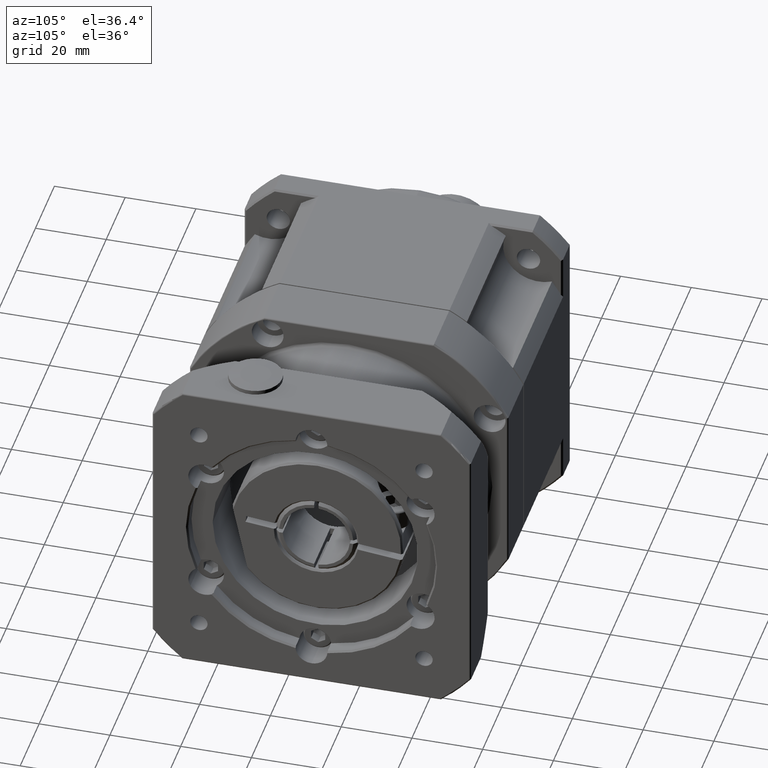
[diagram: clean part render]
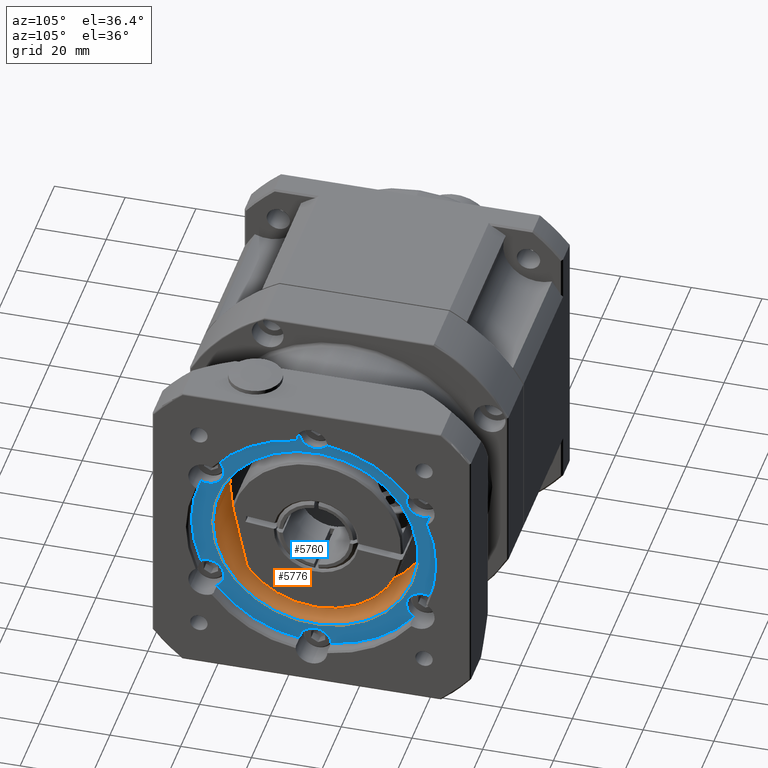
[diagram: same view with the hole feature highlighted: cylindrical wall and planar end face, labeled with their STEP entity ids]
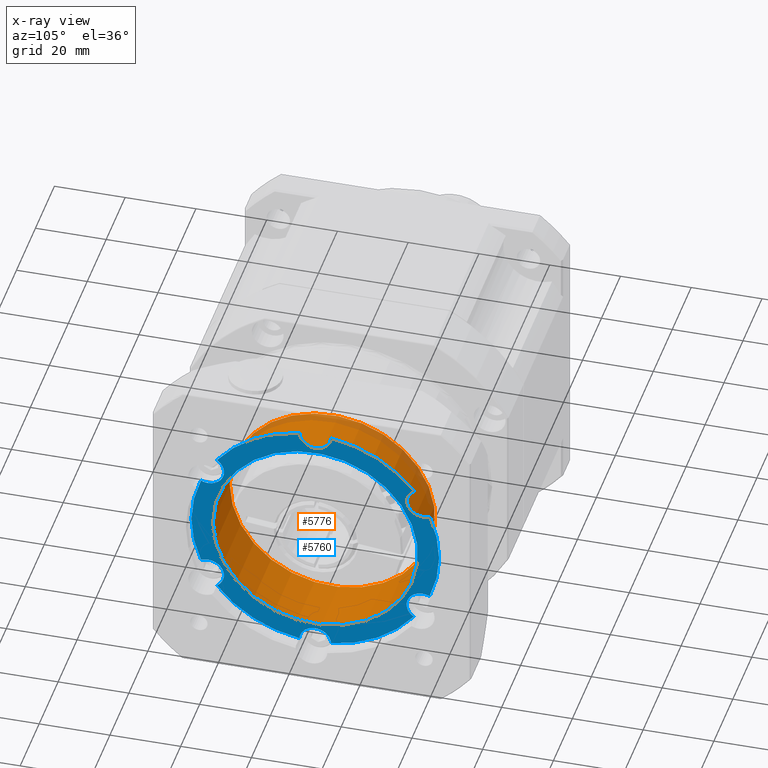
[diagram: x-ray of the same camera — body ghosted, the hole faces saturated]
A machine part, auxiliary view. The highlighted faces form one hole feature of diameter 58 mm: the cylindrical wall (entity #5776, orange) and its adjacent planar end face (entity #5760, blue) — they share a circular edge in the B-rep.
The next image is the same camera in x-ray (body ghosted, the hole faces saturated) — the bore reads through the body.
Wall:
#50=B_SPLINE_CURVE_WITH_KNOTS('',3,(#9449,#9450,#9451,#9452,#9453,#9454,
#9455,#9456,#9457,#9458,#9459,#9460,#9461,#9462,#9463,#9464,#9465,#9466,
#9467,#9468,#9469,#9470,#9471,#9472,#9473,#9474,#9475,#9476,#9477,#9478,
#9479,#9480,#9481,#9482,#9483,#9484,#9485,#9486),.UNSPECIFIED.,.T.,.F.,
(4,2,2,2,2,2,2,2,2,2,2,2,2,2,2,2,2,2,4),(0.,0.0816463751742779,0.163292750348556,
0.326585500697112,0.560253973766129,0.793922446835146,0.99716105333715,
1.20039965983915,1.35762905963704,1.51485845943492,1.68151005279486,1.84816164615479,
2.0419909140311,2.2358201819074,2.46948865497642,2.70315712804543,2.86644987839399,
2.94809625356827,3.02974262874255),.UNSPECIFIED.);
#1049=FACE_BOUND('',#1766,.T.);
#1050=FACE_BOUND('',#1767,.T.);
#1292=FACE_OUTER_BOUND('',#1765,.T.);
#1765=EDGE_LOOP('',(#4253));
#1766=EDGE_LOOP('',(#4254));
#1767=EDGE_LOOP('',(#4255));
#2215=CIRCLE('',#6252,29.);
#2242=CIRCLE('',#6298,29.);
#2613=VERTEX_POINT('',#9283);
#2646=VERTEX_POINT('',#9422);
#2652=VERTEX_POINT('',#9448);
#3195=EDGE_CURVE('',#2613,#2613,#2215,.T.);
#3246=EDGE_CURVE('',#2646,#2646,#2242,.T.);
#3252=EDGE_CURVE('',#2652,#2652,#50,.T.);
#4253=ORIENTED_EDGE('',*,*,#3195,.F.);
#4254=ORIENTED_EDGE('',*,*,#3252,.T.);
#4255=ORIENTED_EDGE('',*,*,#3246,.F.);
#5297=CYLINDRICAL_SURFACE('',#6319,29.);
#5776=ADVANCED_FACE('',(#1292,#1049,#1050),#5297,.F.);
#6252=AXIS2_PLACEMENT_3D('',#9284,#7272,#7273);
#6298=AXIS2_PLACEMENT_3D('',#9423,#7376,#7377);
#6319=AXIS2_PLACEMENT_3D('',#9488,#7418,#7419);
#7272=DIRECTION('center_axis',(1.,1.45660120077612E-15,-5.27608953374165E-15));
#7273=DIRECTION('ref_axis',(1.16447578057657E-15,-1.,-5.94793311827527E-16));
#7376=DIRECTION('center_axis',(-1.,-1.25474246902609E-15,5.27608953374165E-15));
#7377=DIRECTION('ref_axis',(-5.27608953374165E-15,5.94793311827521E-16,
-1.));
#7418=DIRECTION('center_axis',(-1.,-1.25474246902609E-15,5.27608953374165E-15));
#7419=DIRECTION('ref_axis',(1.16447578057657E-15,-1.,-5.94793311827527E-16));
#9283=CARTESIAN_POINT('',(22.9702896556818,-61.3933275789247,10.8503877548309));
#9284=CARTESIAN_POINT('Origin',(22.9702896556817,-32.3933275789247,10.8503877548309));
#9422=CARTESIAN_POINT('',(40.9702896556818,-61.3933275789247,10.8503877548308));
#9423=CARTESIAN_POINT('Origin',(40.9702896556817,-32.3933275789247,10.8503877548308));
#9448=CARTESIAN_POINT('',(32.9702896556818,-55.6433275789247,28.1835207664938));
#9449=CARTESIAN_POINT('Ctrl Pts',(32.9702896556818,-55.6433275789247,28.1835207664938));
#9450=CARTESIAN_POINT('Ctrl Pts',(33.2424442395961,-55.6433275789247,28.1835207664938));
#9451=CARTESIAN_POINT('Ctrl Pts',(33.5142625144002,-55.6168623320245,28.2191694088853));
#9452=CARTESIAN_POINT('Ctrl Pts',(34.0398867880673,-55.5152342092275,28.354232370927));
#9453=CARTESIAN_POINT('Ctrl Pts',(34.2937460030806,-55.4401248183887,28.4534797721084));
#9454=CARTESIAN_POINT('Ctrl Pts',(35.008394217384,-55.1577731280243,28.819106856046));
#9455=CARTESIAN_POINT('Ctrl Pts',(35.4225193526197,-54.8909645035666,29.1546755813682));
#9456=CARTESIAN_POINT('Ctrl Pts',(36.2126901004974,-54.208806961039,29.9677932287982));
#9457=CARTESIAN_POINT('Ctrl Pts',(36.5882529885422,-53.705527012732,30.5335049203157));
#9458=CARTESIAN_POINT('Ctrl Pts',(37.0931368519193,-52.5925170943237,31.674116770056));
#9459=CARTESIAN_POINT('Ctrl Pts',(37.2202896556819,-51.9817666303164,32.2489795966109));
#9460=CARTESIAN_POINT('Ctrl Pts',(37.2202896556819,-50.8815189842715,33.2031444830304));
#9461=CARTESIAN_POINT('Ctrl Pts',(37.1225791647524,-50.3101992212166,33.6638485097967));
#9462=CARTESIAN_POINT('Ctrl Pts',(36.6670582112992,-49.2142040307922,34.4835507452647));
#9463=CARTESIAN_POINT('Ctrl Pts',(36.3080520852598,-48.6904989941188,34.8431811359923));
#9464=CARTESIAN_POINT('Ctrl Pts',(35.5010562230053,-47.9455449768017,35.3305697637339));
#9465=CARTESIAN_POINT('Ctrl Pts',(35.0508412307573,-47.6482308367331,35.5149997546291));
#9466=CARTESIAN_POINT('Ctrl Pts',(34.0475417067486,-47.2467656704439,35.7588307465541));
#9467=CARTESIAN_POINT('Ctrl Pts',(33.4943876550081,-47.1433275789247,35.8191181991286));
#9468=CARTESIAN_POINT('Ctrl Pts',(32.4147843444821,-47.1433275789247,35.8191181991286));
#9469=CARTESIAN_POINT('Ctrl Pts',(31.8316485297585,-47.259384330976,35.7515563188611));
#9470=CARTESIAN_POINT('Ctrl Pts',(30.7847254225578,-47.7042497524487,35.4805218480643));
#9471=CARTESIAN_POINT('Ctrl Pts',(30.3209160537272,-48.0322935407937,35.2758808849638));
#9472=CARTESIAN_POINT('Ctrl Pts',(29.5512265423088,-48.8019830522121,34.7669549855349));
#9473=CARTESIAN_POINT('Ctrl Pts',(29.2239565602094,-49.3083314753863,34.4155344040968));
#9474=CARTESIAN_POINT('Ctrl Pts',(28.8091321665646,-50.3603768171964,33.6235877431571));
#9475=CARTESIAN_POINT('Ctrl Pts',(28.7202896556819,-50.9052141889451,33.1825953526984));
#9476=CARTESIAN_POINT('Ctrl Pts',(28.7202896556819,-51.9817666303164,32.2489795966109));
#9477=CARTESIAN_POINT('Ctrl Pts',(28.8474424594444,-52.5925170943237,31.6741167700561));
#9478=CARTESIAN_POINT('Ctrl Pts',(29.3523263228215,-53.705527012732,30.5335049203157));
#9479=CARTESIAN_POINT('Ctrl Pts',(29.7278892108663,-54.208806961039,29.9677932287982));
#9480=CARTESIAN_POINT('Ctrl Pts',(30.5180599587439,-54.8909645035666,29.1546755813682));
#9481=CARTESIAN_POINT('Ctrl Pts',(30.9321850939797,-55.1577731280243,28.8191068560461));
#9482=CARTESIAN_POINT('Ctrl Pts',(31.6468333082831,-55.4401248183887,28.4534797721084));
#9483=CARTESIAN_POINT('Ctrl Pts',(31.9006925232963,-55.5152342092275,28.354232370927));
#9484=CARTESIAN_POINT('Ctrl Pts',(32.4263167969635,-55.6168623320245,28.2191694088853));
#9485=CARTESIAN_POINT('Ctrl Pts',(32.6981350717676,-55.6433275789247,28.1835207664938));
#9486=CARTESIAN_POINT('Ctrl Pts',(32.9702896556818,-55.6433275789247,28.1835207664938));
#9488=CARTESIAN_POINT('Origin',(31.9702896556817,-32.3933275789247,10.8503877548309));
End face:
#847=PLANE('',#6292);
#1038=FACE_BOUND('',#1739,.T.);
#1276=FACE_OUTER_BOUND('',#1738,.T.);
#1738=EDGE_LOOP('',(#4200,#4201,#4202,#4203,#4204,#4205,#4206,#4207,#4208,
#4209,#4210,#4211));
#1739=EDGE_LOOP('',(#4212));
#2218=CIRCLE('',#6257,4.5);
#2221=CIRCLE('',#6262,4.5);
#2224=CIRCLE('',#6267,4.5);
#2227=CIRCLE('',#6272,4.5);
#2229=CIRCLE('',#6276,4.5);
#2232=CIRCLE('',#6281,35.);
#2236=CIRCLE('',#6291,4.5);
#2237=CIRCLE('',#6293,35.);
#2238=CIRCLE('',#6294,35.);
#2239=CIRCLE('',#6295,35.);
#2240=CIRCLE('',#6296,35.);
#2241=CIRCLE('',#6297,35.);
#2242=CIRCLE('',#6298,29.);
#2618=VERTEX_POINT('',#9305);
#2619=VERTEX_POINT('',#9307);
#2623=VERTEX_POINT('',#9325);
#2624=VERTEX_POINT('',#9327);
#2628=VERTEX_POINT('',#9345);
#2629=VERTEX_POINT('',#9347);
#2633=VERTEX_POINT('',#9365);
#2634=VERTEX_POINT('',#9367);
#2637=VERTEX_POINT('',#9383);
#2638=VERTEX_POINT('',#9385);
#2641=VERTEX_POINT('',#9398);
#2645=VERTEX_POINT('',#9413);
#2646=VERTEX_POINT('',#9422);
#3202=EDGE_CURVE('',#2619,#2618,#2218,.T.);
#3209=EDGE_CURVE('',#2624,#2623,#2221,.T.);
#3216=EDGE_CURVE('',#2629,#2628,#2224,.T.);
#3223=EDGE_CURVE('',#2634,#2633,#2227,.T.);
#3229=EDGE_CURVE('',#2638,#2637,#2229,.T.);
#3235=EDGE_CURVE('',#2641,#2637,#2232,.T.);
#3240=EDGE_CURVE('',#2641,#2645,#2236,.T.);
#3241=EDGE_CURVE('',#2638,#2633,#2237,.T.);
#3242=EDGE_CURVE('',#2619,#2645,#2238,.T.);
#3243=EDGE_CURVE('',#2624,#2618,#2239,.T.);
#3244=EDGE_CURVE('',#2629,#2623,#2240,.T.);
#3245=EDGE_CURVE('',#2634,#2628,#2241,.T.);
#3246=EDGE_CURVE('',#2646,#2646,#2242,.T.);
#4200=ORIENTED_EDGE('',*,*,#3223,.T.);
#4201=ORIENTED_EDGE('',*,*,#3241,.F.);
#4202=ORIENTED_EDGE('',*,*,#3229,.T.);
#4203=ORIENTED_EDGE('',*,*,#3235,.F.);
#4204=ORIENTED_EDGE('',*,*,#3240,.T.);
#4205=ORIENTED_EDGE('',*,*,#3242,.F.);
#4206=ORIENTED_EDGE('',*,*,#3202,.T.);
#4207=ORIENTED_EDGE('',*,*,#3243,.F.);
#4208=ORIENTED_EDGE('',*,*,#3209,.T.);
#4209=ORIENTED_EDGE('',*,*,#3244,.F.);
#4210=ORIENTED_EDGE('',*,*,#3216,.T.);
#4211=ORIENTED_EDGE('',*,*,#3245,.F.);
#4212=ORIENTED_EDGE('',*,*,#3246,.T.);
#5760=ADVANCED_FACE('',(#1276,#1038),#847,.F.);
#6257=AXIS2_PLACEMENT_3D('',#9308,#7283,#7284);
#6262=AXIS2_PLACEMENT_3D('',#9328,#7295,#7296);
#6267=AXIS2_PLACEMENT_3D('',#9348,#7307,#7308);
#6272=AXIS2_PLACEMENT_3D('',#9368,#7319,#7320);
#6276=AXIS2_PLACEMENT_3D('',#9386,#7329,#7330);
#6281=AXIS2_PLACEMENT_3D('',#9400,#7341,#7342);
#6291=AXIS2_PLACEMENT_3D('',#9415,#7362,#7363);
#6292=AXIS2_PLACEMENT_3D('',#9416,#7364,#7365);
#6293=AXIS2_PLACEMENT_3D('',#9417,#7366,#7367);
#6294=AXIS2_PLACEMENT_3D('',#9418,#7368,#7369);
#6295=AXIS2_PLACEMENT_3D('',#9419,#7370,#7371);
#6296=AXIS2_PLACEMENT_3D('',#9420,#7372,#7373);
#6297=AXIS2_PLACEMENT_3D('',#9421,#7374,#7375);
#6298=AXIS2_PLACEMENT_3D('',#9423,#7376,#7377);
#7283=DIRECTION('center_axis',(-1.,-1.25474246902609E-15,5.27608953374165E-15));
#7284=DIRECTION('ref_axis',(-1.37659112381579E-15,-0.866025403784438,-0.5));
#7295=DIRECTION('center_axis',(-1.,-1.25474246902609E-15,5.27608953374165E-15));
#7296=DIRECTION('ref_axis',(-5.27608953374165E-15,4.09756141056661E-16,
-1.));
#7307=DIRECTION('center_axis',(-1.,-1.25474246902609E-15,5.27608953374165E-15));
#7308=DIRECTION('ref_axis',(-3.89949840992586E-15,0.866025403784439,-0.5));
#7319=DIRECTION('center_axis',(-1.,-1.25474246902609E-15,5.27608953374165E-15));
#7320=DIRECTION('ref_axis',(1.37659112381578E-15,0.866025403784439,0.5));
#7329=DIRECTION('center_axis',(-1.,-1.25474246902609E-15,5.27608953374165E-15));
#7330=DIRECTION('ref_axis',(5.27608953374165E-15,-5.94793311827521E-16,
1.));
#7341=DIRECTION('center_axis',(-1.,-1.25474246902609E-15,5.27608953374165E-15));
#7342=DIRECTION('ref_axis',(-5.27608953374165E-15,5.94793311827521E-16,
-1.));
#7362=DIRECTION('center_axis',(-1.,-1.25474246902609E-15,5.27608953374165E-15));
#7363=DIRECTION('ref_axis',(3.89949840992586E-15,-0.866025403784439,0.5));
#7364=DIRECTION('center_axis',(-1.,-1.25474246902609E-15,5.27608953374165E-15));
#7365=DIRECTION('ref_axis',(-4.9737991503207E-15,7.105427357601E-16,-1.));
#7366=DIRECTION('center_axis',(-1.,-1.25474246902609E-15,5.27608953374165E-15));
#7367=DIRECTION('ref_axis',(-5.27608953374165E-15,5.94793311827521E-16,
-1.));
#7368=DIRECTION('center_axis',(-1.,-1.25474246902609E-15,5.27608953374165E-15));
#7369=DIRECTION('ref_axis',(-5.27608953374165E-15,5.94793311827521E-16,
-1.));
#7370=DIRECTION('center_axis',(-1.,-1.25474246902609E-15,5.27608953374165E-15));
#7371=DIRECTION('ref_axis',(-5.27608953374165E-15,5.94793311827521E-16,
-1.));
#7372=DIRECTION('center_axis',(-1.,-1.25474246902609E-15,5.27608953374165E-15));
#7373=DIRECTION('ref_axis',(-5.27608953374165E-15,5.94793311827521E-16,
-1.));
#7374=DIRECTION('center_axis',(-1.,-1.25474246902609E-15,5.27608953374165E-15));
#7375=DIRECTION('ref_axis',(-5.27608953374165E-15,5.94793311827521E-16,
-1.));
#7376=DIRECTION('center_axis',(-1.,-1.25474246902609E-15,5.27608953374165E-15));
#7377=DIRECTION('ref_axis',(-5.27608953374165E-15,5.94793311827521E-16,
-1.));
#9305=CARTESIAN_POINT('',(40.9702896556817,-60.2083419819201,-10.3940226573494));
#9307=CARTESIAN_POINT('',(40.9702896556817,-64.6990338857931,-2.61591611870323));
#9308=CARTESIAN_POINT('Origin',(40.9702896556817,-62.70421671138,-6.64961224516919));
#9325=CARTESIAN_POINT('',(40.9702896556815,-27.9026356750517,-23.8603265308835));
#9327=CARTESIAN_POINT('',(40.9702896556816,-36.8840194827976,-23.8603265308835));
#9328=CARTESIAN_POINT('Origin',(40.9702896556815,-32.3933275789246,-24.1496122451692));
#9345=CARTESIAN_POINT('',(40.9702896556816,-0.0876212720561709,-2.61591611870321));
#9347=CARTESIAN_POINT('',(40.9702896556816,-4.57831317592915,-10.3940226573494));
#9348=CARTESIAN_POINT('Origin',(40.9702896556816,-2.0824384464693,-6.64961224516918));
#9365=CARTESIAN_POINT('',(40.9702896556818,-4.57831317592915,32.0947981670111));
#9367=CARTESIAN_POINT('',(40.9702896556817,-0.0876212720561664,24.3166916283649));
#9368=CARTESIAN_POINT('Origin',(40.9702896556818,-2.08243844646929,28.3503877548308));
#9383=CARTESIAN_POINT('',(40.9702896556819,-36.8840194827977,45.5611020405451));
#9385=CARTESIAN_POINT('',(40.9702896556819,-27.9026356750517,45.5611020405451));
#9386=CARTESIAN_POINT('Origin',(40.9702896556819,-32.3933275789247,45.8503877548308));
#9398=CARTESIAN_POINT('',(40.9702896556819,-60.2083419819202,32.0947981670111));
#9400=CARTESIAN_POINT('Origin',(40.9702896556817,-32.3933275789247,10.8503877548308));
#9413=CARTESIAN_POINT('',(40.9702896556818,-64.6990338857931,24.3166916283648));
#9415=CARTESIAN_POINT('Origin',(40.9702896556819,-62.70421671138,28.3503877548308));
#9416=CARTESIAN_POINT('Origin',(40.9702896556818,-61.3933275789247,10.8503877548308));
#9417=CARTESIAN_POINT('Origin',(40.9702896556817,-32.3933275789247,10.8503877548308));
#9418=CARTESIAN_POINT('Origin',(40.9702896556817,-32.3933275789247,10.8503877548308));
#9419=CARTESIAN_POINT('Origin',(40.9702896556817,-32.3933275789247,10.8503877548308));
#9420=CARTESIAN_POINT('Origin',(40.9702896556817,-32.3933275789247,10.8503877548308));
#9421=CARTESIAN_POINT('Origin',(40.9702896556817,-32.3933275789247,10.8503877548308));
#9422=CARTESIAN_POINT('',(40.9702896556818,-61.3933275789247,10.8503877548308));
#9423=CARTESIAN_POINT('Origin',(40.9702896556817,-32.3933275789247,10.8503877548308));